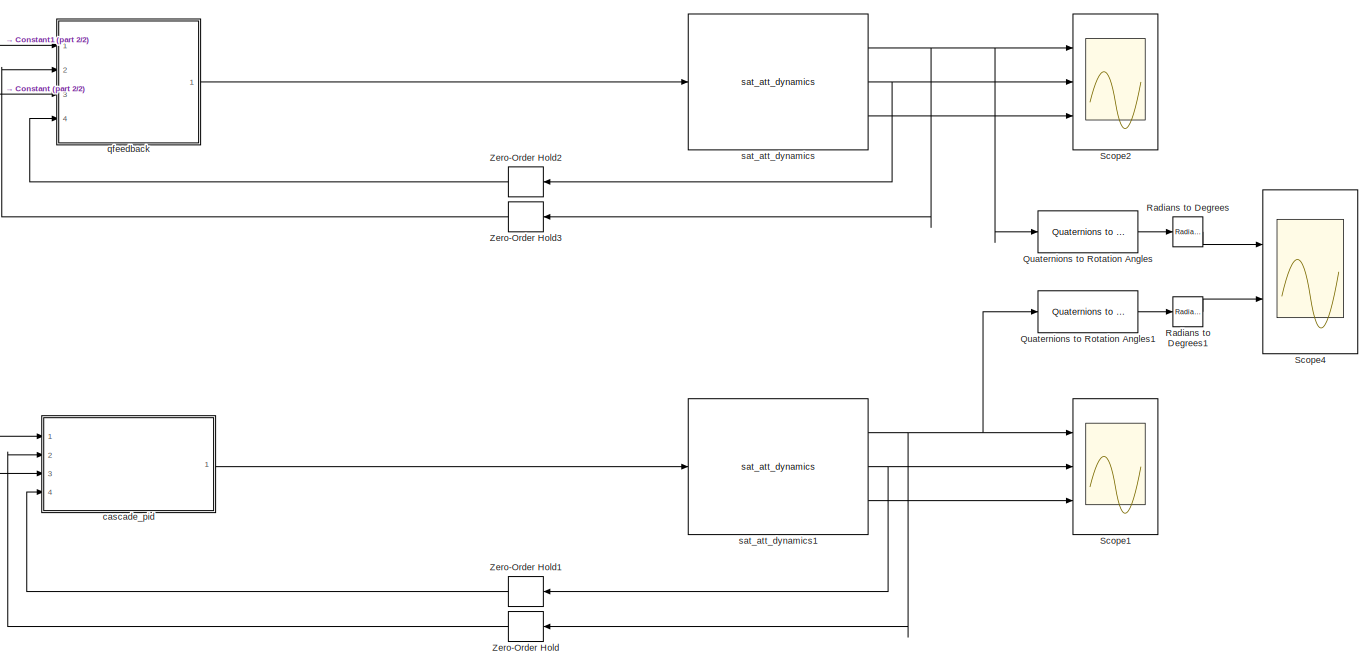
[diagram: root canvas - part 1/2, center side, full height]
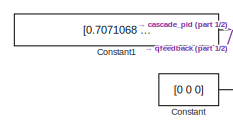
[diagram: root canvas - part 2/2, top left region]
MODEL slx_ab71b6c6d30f
KIND model
CONFIG AbsTol = auto
CONFIG EnableMultiTasking = off
CONFIG FixedStep = auto
CONFIG MaxStep = auto
CONFIG MinStep = auto
CONFIG RelTol = 1e-3
CONFIG SampleTimeConstraint = Unconstrained
CONFIG SolverName = VariableStepAuto
CONFIG StartTime = 0.0
CONFIG StopTime = 100.0
BLOCK [Constant] Constant
  Value = [0 0 0]
BLOCK [Constant] Constant1
  Value = [0.7071068 0.4082483 0.4082483 0.4082483]
BLOCK [Reference] Quaternions to Rotation Angles  REF=sharedtransform/Quaternions to Rotation Angles
  AttributesFormatString = Rotation Order: %<rotationOrder>
  Ports = [1, 1]
  SourceBlock = sharedtransform/Quaternions to Rotation Angles
  SourceProductBaseCode = AE,PW,DR,MT,UV,VE
  SourceType = Quat2Ang
BLOCK [Reference] Quaternions to Rotation Angles1  REF=sharedtransform/Quaternions to Rotation Angles
  AttributesFormatString = Rotation Order: %<rotationOrder>
  Ports = [1, 1]
  SourceBlock = sharedtransform/Quaternions to Rotation Angles
  SourceProductBaseCode = AE,PW,DR,MT,UV,VE
  SourceType = Quat2Ang
BLOCK [Reference] Radians to Degrees  REF=simulink_extras/Transformations/Radians
to Degrees
  Ports = [1, 1]
  SourceBlock = simulink_extras/Transformations/Radians\nto Degrees
  SourceProductBaseCode = SL
  SourceType = RadiansToDegrees
BLOCK [Reference] Radians to Degrees1  REF=simulink_extras/Transformations/Radians
to Degrees
  Ports = [1, 1]
  SourceBlock = simulink_extras/Transformations/Radians\nto Degrees
  SourceProductBaseCode = SL
  SourceType = RadiansToDegrees
BLOCK [Scope] Scope1
  Floating = off
  NumInputPorts = 3
  Ports = [3]
  ScopeSpecificationString = Simulink.scopes.TimeScopeBlockCfg('CurrentConfiguration', extmgr.ConfigurationSet(extmgr.Configuration('Core','General UI',true),extmgr.Configuration('Core','Source UI',true),extmgr.Configuration('Sources','WiredSimulink',true,'DataLoggingVariableName','ScopeData1'),extmgr.Configuration('Visuals','Time Domain',true,'SerializedDisplays',{struct('MinYLimReal','-0.125','MaxYLimReal','1.125','YLabelRe...<+2951ch>
BLOCK [Scope] Scope2
  Floating = off
  NumInputPorts = 3
  Ports = [3]
  ScopeSpecificationString = Simulink.scopes.TimeScopeBlockCfg('CurrentConfiguration', extmgr.ConfigurationSet(extmgr.Configuration('Core','General UI',true),extmgr.Configuration('Core','Source UI',true),extmgr.Configuration('Sources','WiredSimulink',true,'DataLoggingVariableName','ScopeData2'),extmgr.Configuration('Visuals','Time Domain',true,'SerializedDisplays',{struct('MinYLimReal','-0.125','MaxYLimReal','1.125','YLabelRe...<+2940ch>
BLOCK [Scope] Scope4
  Floating = off
  NumInputPorts = 2
  Ports = [2]
  ScopeSpecificationString = Simulink.scopes.TimeScopeBlockCfg('CurrentConfiguration', extmgr.ConfigurationSet(extmgr.Configuration('Core','General UI',true),extmgr.Configuration('Core','Source UI',true),extmgr.Configuration('Sources','WiredSimulink',true,'DataLoggingVariableName','ScopeData5'),extmgr.Configuration('Visuals','Time Domain',true,'SerializedDisplays',{struct('MinYLimReal','-8.73701','MaxYLimReal','78.6331','YLab...<+1550ch>
BLOCK [ZeroOrderHold] Zero-Order Hold
  NameLocation = top
  SampleTime = 0.25
BLOCK [ZeroOrderHold] Zero-Order Hold1
  NameLocation = top
  SampleTime = 0.25
BLOCK [ZeroOrderHold] Zero-Order Hold2
  NameLocation = top
  SampleTime = 0.25
BLOCK [ZeroOrderHold] Zero-Order Hold3
  NameLocation = top
  SampleTime = 0.25
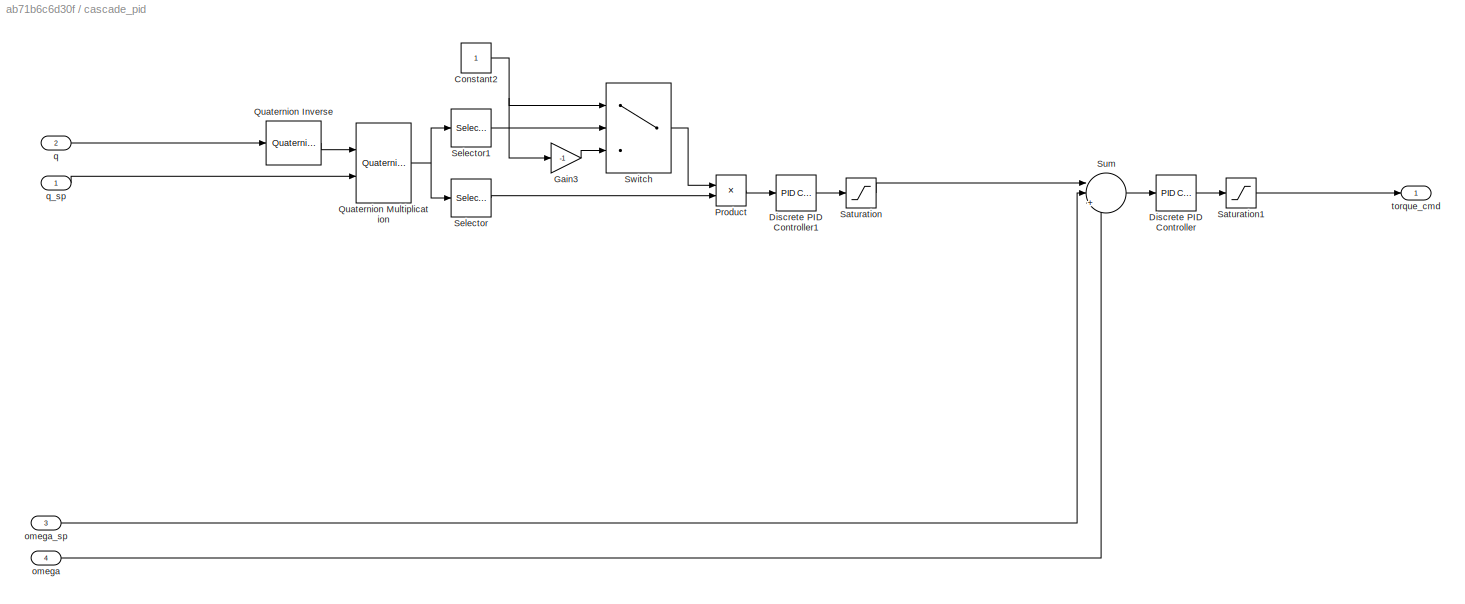
BLOCK [SubSystem] cascade_pid
  Ports = [4, 1]
  RequestExecContextInheritance = off
BLOCK [Constant] cascade_pid/Constant2
BLOCK [Reference] cascade_pid/Discrete PID Controller  REF=slpidlib/PID Controller
  Ports = [1, 1]
  SourceBlock = slpidlib/PID Controller
  SourceProductBaseCode = SL
  SourceType = PID 1dof
BLOCK [Reference] cascade_pid/Discrete PID Controller1  REF=slpidlib/PID Controller
  Ports = [1, 1]
  SourceBlock = slpidlib/PID Controller
  SourceProductBaseCode = SL
  SourceType = PID 1dof
BLOCK [Gain] cascade_pid/Gain3
  Gain = -1
BLOCK [Product] cascade_pid/Product
  Ports = [2, 1]
BLOCK [Reference] cascade_pid/Quaternion Inverse  REF=aerolibutil/Quaternion
Inverse
  Ports = [1, 1]
  SourceBlock = aerolibutil/Quaternion\nInverse
  SourceProductBaseCode = AE
  SourceType = Quaternion Inverse
BLOCK [Reference] cascade_pid/Quaternion Multiplication  REF=aerolibutil/Quaternion
Multiplication
  Ports = [2, 1]
  SourceBlock = aerolibutil/Quaternion\nMultiplication
  SourceProductBaseCode = AE
  SourceType = Quaternion Multiplication
BLOCK [Saturate] cascade_pid/Saturation
  LowerLimit = -0.0591 * [1 1 1]
  UpperLimit = 0.0591 * [1 1 1]
BLOCK [Saturate] cascade_pid/Saturation1
  LowerLimit = -[0.004 0.0034 0.0012]
  UpperLimit = [0.004 0.0034 0.0012]
BLOCK [Selector] cascade_pid/Selector
  IndexOptions = Index vector (dialog)
  Indices = [2 3 4]
  InputPortWidth = 4
  OutputSizes = 1
  Ports = [1, 1]
BLOCK [Selector] cascade_pid/Selector1
  IndexOptions = Index vector (dialog)
  Indices = [1]
  InputPortWidth = 4
  OutputSizes = 1
  Ports = [1, 1]
BLOCK [Sum] cascade_pid/Sum
  Inputs = ||++-
  Ports = [3, 1]
BLOCK [Switch] cascade_pid/Switch
  Criteria = u2 > Threshold
  InputSameDT = off
  SaturateOnIntegerOverflow = off
BLOCK [Inport] cascade_pid/omega
  Port = 4
BLOCK [Inport] cascade_pid/omega_sp
  Port = 3
BLOCK [Inport] cascade_pid/q
  Port = 2
BLOCK [Inport] cascade_pid/q_sp
BLOCK [Outport] cascade_pid/torque_cmd
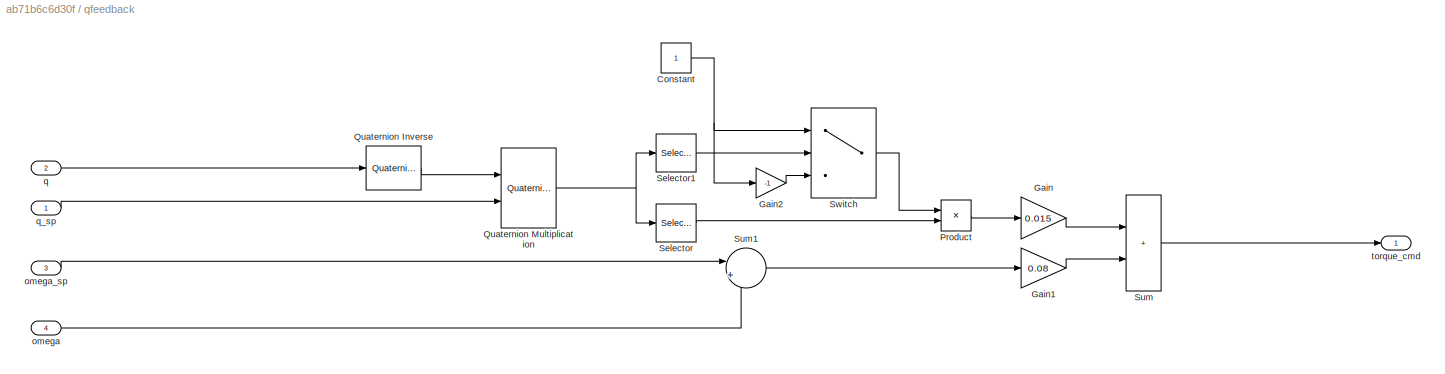
BLOCK [SubSystem] qfeedback
  Ports = [4, 1]
  RequestExecContextInheritance = off
BLOCK [Constant] qfeedback/Constant
BLOCK [Gain] qfeedback/Gain
  Gain = 0.015
BLOCK [Gain] qfeedback/Gain1
  Gain = 0.08
BLOCK [Gain] qfeedback/Gain2
  Gain = -1
BLOCK [Product] qfeedback/Product
  Ports = [2, 1]
BLOCK [Reference] qfeedback/Quaternion Inverse  REF=aerolibutil/Quaternion
Inverse
  Ports = [1, 1]
  SourceBlock = aerolibutil/Quaternion\nInverse
  SourceProductBaseCode = AE
  SourceType = Quaternion Inverse
BLOCK [Reference] qfeedback/Quaternion Multiplication  REF=aerolibutil/Quaternion
Multiplication
  Ports = [2, 1]
  SourceBlock = aerolibutil/Quaternion\nMultiplication
  SourceProductBaseCode = AE
  SourceType = Quaternion Multiplication
BLOCK [Selector] qfeedback/Selector
  IndexOptions = Index vector (dialog)
  Indices = [2 3 4]
  InputPortWidth = 4
  OutputSizes = 1
  Ports = [1, 1]
BLOCK [Selector] qfeedback/Selector1
  IndexOptions = Index vector (dialog)
  Indices = [1]
  InputPortWidth = 4
  OutputSizes = 1
  Ports = [1, 1]
BLOCK [Sum] qfeedback/Sum
  IconShape = rectangular
  Ports = [2, 1]
BLOCK [Sum] qfeedback/Sum1
  Inputs = |+-
  Ports = [2, 1]
BLOCK [Switch] qfeedback/Switch
  Criteria = u2 > Threshold
  InputSameDT = off
  SaturateOnIntegerOverflow = off
BLOCK [Inport] qfeedback/omega
  Port = 4
BLOCK [Inport] qfeedback/omega_sp
  Port = 3
BLOCK [Inport] qfeedback/q
  Port = 2
BLOCK [Inport] qfeedback/q_sp
BLOCK [Outport] qfeedback/torque_cmd
BLOCK [Reference] sat_att_dynamics  REF=dynamics_lib/sat_att_dynamics  (lib defined in slx_019dedf3753e)
  Ports = [1, 3]
  SourceBlock = dynamics_lib/sat_att_dynamics
BLOCK [Reference] sat_att_dynamics1  REF=dynamics_lib/sat_att_dynamics  (lib defined in slx_019dedf3753e)
  Ports = [1, 3]
  SourceBlock = dynamics_lib/sat_att_dynamics
NET Constant1:1 -> cascade_pid:1, qfeedback:1
NET Constant:1 -> cascade_pid:3, qfeedback:3
LINE Quaternions to Rotation Angles1:1 -> Radians to Degrees1:1
LINE Quaternions to Rotation Angles:1 -> Radians to Degrees:1
LINE Radians to Degrees1:1 -> Scope4:2
LINE Radians to Degrees:1 -> Scope4:1
LINE Zero-Order Hold1:1 -> cascade_pid:4
LINE Zero-Order Hold2:1 -> qfeedback:4
LINE Zero-Order Hold3:1 -> qfeedback:2
LINE Zero-Order Hold:1 -> cascade_pid:2
NET cascade_pid/Constant2:1 -> cascade_pid/Gain3:1, cascade_pid/Switch:1
LINE cascade_pid/Discrete PID Controller1:1 -> cascade_pid/Saturation:1
LINE cascade_pid/Discrete PID Controller:1 -> cascade_pid/Saturation1:1
LINE cascade_pid/Gain3:1 -> cascade_pid/Switch:3
LINE cascade_pid/Product:1 -> cascade_pid/Discrete PID Controller1:1
LINE cascade_pid/Quaternion Inverse:1 -> cascade_pid/Quaternion Multiplication:1
NET cascade_pid/Quaternion Multiplication:1 -> cascade_pid/Selector1:1, cascade_pid/Selector:1
LINE cascade_pid/Saturation1:1 -> cascade_pid/torque_cmd:1
LINE cascade_pid/Saturation:1 -> cascade_pid/Sum:1
LINE cascade_pid/Selector1:1 -> cascade_pid/Switch:2
LINE cascade_pid/Selector:1 -> cascade_pid/Product:2
LINE cascade_pid/Sum:1 -> cascade_pid/Discrete PID Controller:1
LINE cascade_pid/Switch:1 -> cascade_pid/Product:1
LINE cascade_pid/omega:1 -> cascade_pid/Sum:3
LINE cascade_pid/omega_sp:1 -> cascade_pid/Sum:2
LINE cascade_pid/q:1 -> cascade_pid/Quaternion Inverse:1
LINE cascade_pid/q_sp:1 -> cascade_pid/Quaternion Multiplication:2
LINE cascade_pid:1 -> sat_att_dynamics1:1
NET qfeedback/Constant:1 -> qfeedback/Gain2:1, qfeedback/Switch:1
LINE qfeedback/Gain1:1 -> qfeedback/Sum:2
LINE qfeedback/Gain2:1 -> qfeedback/Switch:3
LINE qfeedback/Gain:1 -> qfeedback/Sum:1
LINE qfeedback/Product:1 -> qfeedback/Gain:1
LINE qfeedback/Quaternion Inverse:1 -> qfeedback/Quaternion Multiplication:1
NET qfeedback/Quaternion Multiplication:1 -> qfeedback/Selector1:1, qfeedback/Selector:1
LINE qfeedback/Selector1:1 -> qfeedback/Switch:2
LINE qfeedback/Selector:1 -> qfeedback/Product:2
LINE qfeedback/Sum1:1 -> qfeedback/Gain1:1
LINE qfeedback/Sum:1 -> qfeedback/torque_cmd:1
LINE qfeedback/Switch:1 -> qfeedback/Product:1
LINE qfeedback/omega:1 -> qfeedback/Sum1:2
LINE qfeedback/omega_sp:1 -> qfeedback/Sum1:1
LINE qfeedback/q:1 -> qfeedback/Quaternion Inverse:1
LINE qfeedback/q_sp:1 -> qfeedback/Quaternion Multiplication:2
LINE qfeedback:1 -> sat_att_dynamics:1
NET sat_att_dynamics1:1 -> Quaternions to Rotation Angles1:1, Scope1:1, Zero-Order Hold:1
NET sat_att_dynamics1:2 -> Scope1:2, Zero-Order Hold1:1
LINE sat_att_dynamics1:3 -> Scope1:3
NET sat_att_dynamics:1 -> Quaternions to Rotation Angles:1, Scope2:1, Zero-Order Hold3:1
NET sat_att_dynamics:2 -> Scope2:2, Zero-Order Hold2:1
LINE sat_att_dynamics:3 -> Scope2:3
note: NET lines group one-source signal fan-out (src -> all destinations, sorted); 1:1 wires keep LINE
